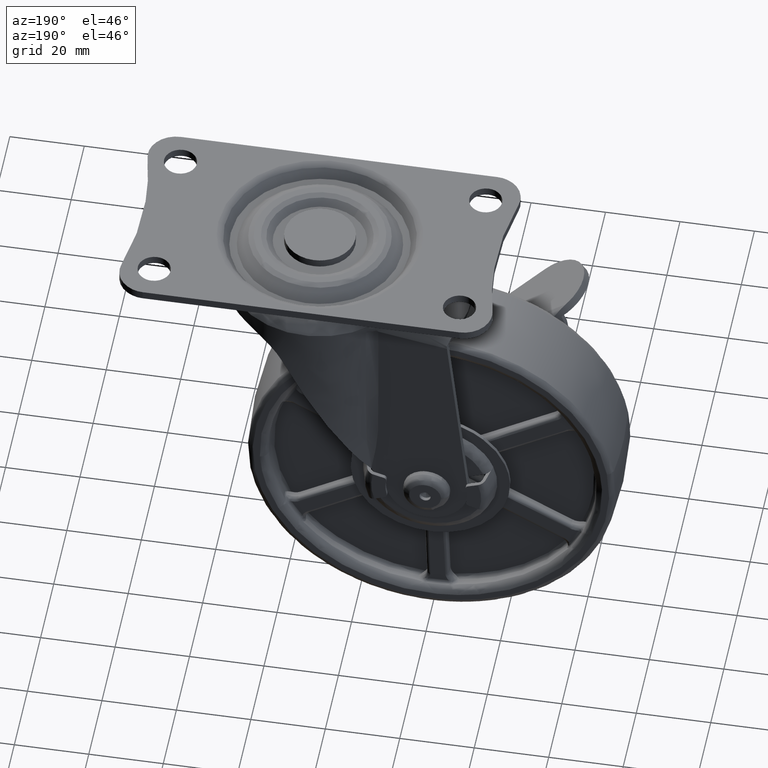
[diagram: clean part render]
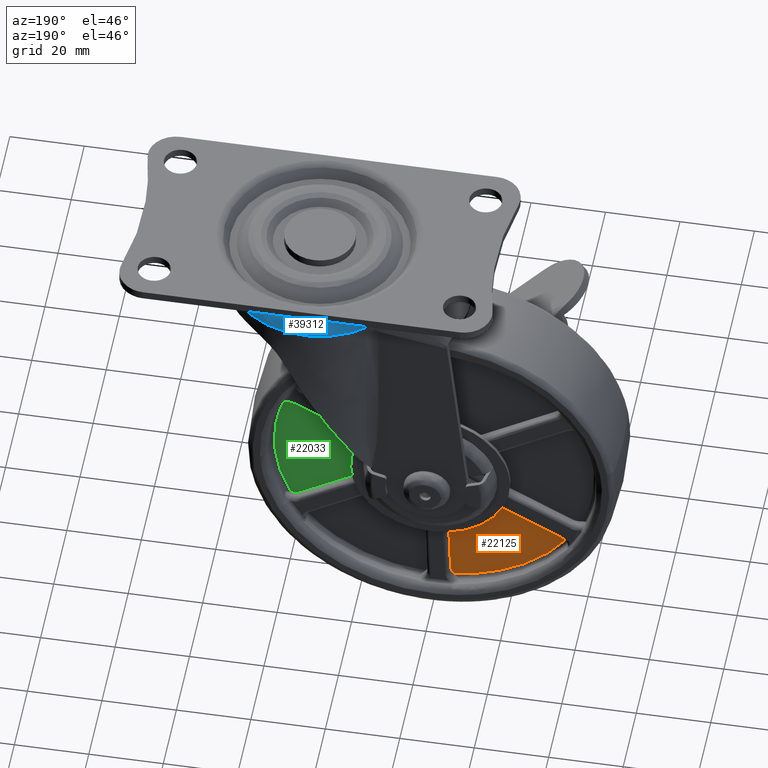
[diagram: same view with three faces highlighted in distinct colors, each labeled with its STEP entity id]
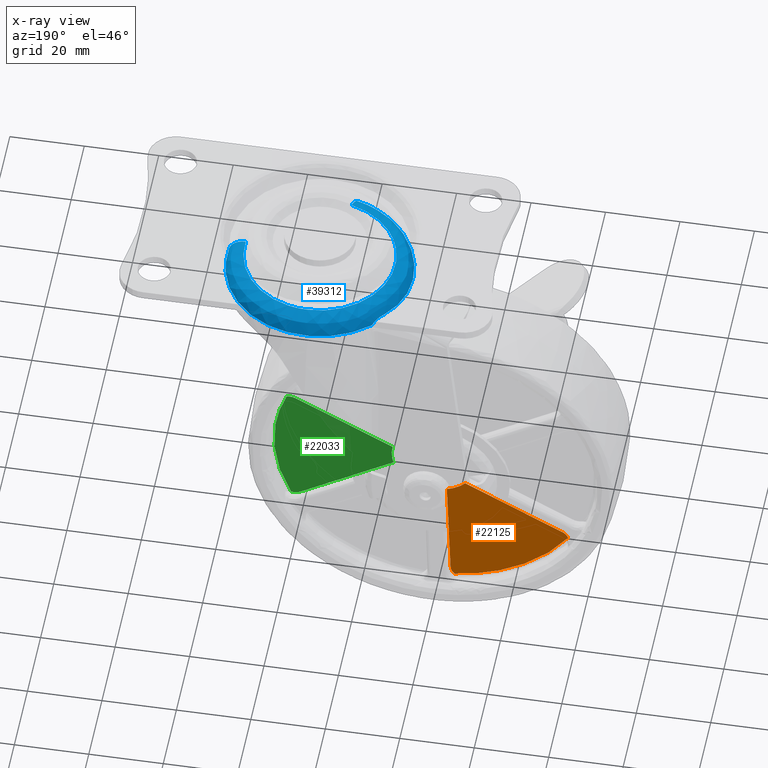
[diagram: x-ray of the same camera — body ghosted, the three highlighted faces saturated]
A machine part, auxiliary view with three faces highlighted in distinct colors.
The next image is the same camera in x-ray (body ghosted, the three faces saturated) — at least one of them is partly hidden behind the body in this view.
Their STEP definitions:

[orange] entity #22125 — the highlighted face is a freeform B-spline surface patch.
#13135=CARTESIAN_POINT('',(-3.898520270039925,7.500000000000000,-42.822909118496348));
#13136=VERTEX_POINT('',#13135);
#13145=CARTESIAN_POINT('',(-3.0,7.500000000000000,-40.481477245772552));
#13146=VERTEX_POINT('',#13145);
#13147=CARTESIAN_POINT('',(-3.0,7.500000000000000,-40.481477245772552));
#13148=CARTESIAN_POINT('',(-2.999971385917076,7.500000000000003,-40.748654271909373));
#13149=CARTESIAN_POINT('',(-3.067539262817946,7.499999999999996,-41.336469728366417));
#13150=CARTESIAN_POINT('',(-3.376774945151983,7.500000000000016,-42.142216525419187));
#13151=CARTESIAN_POINT('',(-3.719754823404831,7.499999999999981,-42.624344417789530));
#13152=CARTESIAN_POINT('',(-3.898520270039925,7.500000000000000,-42.822909118496348));
#13153=B_SPLINE_CURVE_WITH_KNOTS('',3,(#13147,#13148,#13149,#13150,#13151,#13152),.UNSPECIFIED.,.F.,.U.,(4,1,1,4),(0.000000108783510,0.801561501164564,1.763421918056608,2.564983310437035),.UNSPECIFIED.);
#13154=EDGE_CURVE('',#13146,#13136,#13153,.T.);
#13199=CARTESIAN_POINT('',(-3.0,7.500000000000000,-11.013278645977820));
#13200=VERTEX_POINT('',#13199);
#13201=CARTESIAN_POINT('',(-3.0,7.500000000000000,-40.481477245772552));
#13202=CARTESIAN_POINT('',(-3.0,7.500000000000000,-11.013278645977820));
#13203=QUASI_UNIFORM_CURVE('',1,(#13201,#13202),.UNSPECIFIED.,.F.,.U.);
#13204=EDGE_CURVE('',#13146,#13200,#13203,.T.);
#13923=CARTESIAN_POINT('',(-35.136469616515747,7.499999999999830,-24.787680119000800));
#13924=VERTEX_POINT('',#13923);
#13935=CARTESIAN_POINT('',(-33.557987677560597,7.500000000000000,-22.838814834239749));
#13936=VERTEX_POINT('',#13935);
#13942=CARTESIAN_POINT('',(-35.136469616515747,7.499999999999830,-24.787680119000800));
#13943=CARTESIAN_POINT('',(-34.980236533223042,7.499999999999890,-24.304509629944899));
#13944=CARTESIAN_POINT('',(-34.535034048559183,7.499999999999988,-23.551045311698321));
#13945=CARTESIAN_POINT('',(-33.858868040329192,7.499999999999990,-23.012367589514302));
#13946=CARTESIAN_POINT('',(-33.557987677560597,7.500000000000000,-22.838814834239749));
#13947=B_SPLINE_CURVE_WITH_KNOTS('',3,(#13942,#13943,#13944,#13945,#13946),.UNSPECIFIED.,.F.,.U.,(4,1,4),(0.000000108786437,1.522957308057716,2.564991690350785),.UNSPECIFIED.);
#13948=EDGE_CURVE('',#13924,#13936,#13947,.T.);
#13988=CARTESIAN_POINT('',(-8.037782745791821,7.500000000000000,-8.104717647108611));
#13989=VERTEX_POINT('',#13988);
#13999=CARTESIAN_POINT('',(-33.557987677560597,7.500000000000000,-22.838814834239749));
#14000=CARTESIAN_POINT('',(-8.037782745791821,7.500000000000000,-8.104717647108611));
#14001=QUASI_UNIFORM_CURVE('',1,(#13999,#14000),.UNSPECIFIED.,.F.,.U.);
#14002=EDGE_CURVE('',#13936,#13989,#14001,.T.);
#22088=CARTESIAN_POINT('',(-35.136469616515747,7.499999999999830,-24.787680119000800));
#22089=CARTESIAN_POINT('',(-33.237168780563138,7.499999999999838,-27.481125963252289));
#22090=CARTESIAN_POINT('',(-29.985352966148319,7.499999999999941,-31.117897769582459));
#22091=CARTESIAN_POINT('',(-24.669036646620992,7.499999999999872,-35.350103707996119));
#22092=CARTESIAN_POINT('',(-20.446636437147749,7.500000000000052,-37.942661946951141));
#22093=CARTESIAN_POINT('',(-15.335262112789920,7.499999999999931,-40.301217506823242));
#22094=CARTESIAN_POINT('',(-9.954461075080847,7.499999999999942,-41.988121278476598));
#22095=CARTESIAN_POINT('',(-5.829168123925778,7.500000000000033,-42.647220613381762));
#22096=CARTESIAN_POINT('',(-3.898520270039925,7.500000000000000,-42.822909118496348));
#22097=B_SPLINE_CURVE_WITH_KNOTS('',3,(#22088,#22089,#22090,#22091,#22092,#22093,#22094,#22095,#22096),.UNSPECIFIED.,.F.,.U.,(4,1,1,1,1,1,4),(0.000000050087884,9.887042586671520,14.539798704742839,20.355662643080208,24.717592882815801,31.405916633635769,37.221800883283777),.UNSPECIFIED.);
#22098=EDGE_CURVE('',#13924,#13136,#22097,.T.);
#22105=CARTESIAN_POINT('',(-36.741687418270729,7.500000000000000,-6.370543398584304));
#22106=CARTESIAN_POINT('',(-36.741687418270729,7.500000000000000,-44.557083677425481));
#22107=CARTESIAN_POINT('',(-1.394782485567446,7.500000000000000,-6.370543398584304));
#22108=CARTESIAN_POINT('',(-1.394782485567446,7.500000000000000,-44.557083677425481));
#22109=B_SPLINE_SURFACE_WITH_KNOTS('',1,1,((#22105,#22107),(#22106,#22108)),.UNSPECIFIED.,.F.,.F.,.U.,(2,2),(2,2),(0.0,38.186540278841179),(0.0,35.346904932703282),.UNSPECIFIED.);
#22110=ORIENTED_EDGE('',*,*,#13204,.F.);
#22111=ORIENTED_EDGE('',*,*,#13154,.T.);
#22112=ORIENTED_EDGE('',*,*,#22098,.F.);
#22113=ORIENTED_EDGE('',*,*,#13948,.T.);
#22114=ORIENTED_EDGE('',*,*,#14002,.T.);
#22115=CARTESIAN_POINT('',(-8.037782745791821,7.500000000000000,-8.104717647108611));
#22116=CARTESIAN_POINT('',(-7.211564476619667,7.500000000000018,-8.924943359386852));
#22117=CARTESIAN_POINT('',(-5.606138242256549,7.499999999999965,-10.089929203833110));
#22118=CARTESIAN_POINT('',(-3.768536308369087,7.500000000000014,-10.804003067816391));
#22119=CARTESIAN_POINT('',(-3.0,7.500000000000000,-11.013278645977820));
#22120=B_SPLINE_CURVE_WITH_KNOTS('',3,(#22115,#22116,#22117,#22118,#22119),.UNSPECIFIED.,.F.,.U.,(4,1,4),(0.000000024613586,3.492451853238330,5.882055389910719),.UNSPECIFIED.);
#22121=EDGE_CURVE('',#13989,#13200,#22120,.T.);
#22122=ORIENTED_EDGE('',*,*,#22121,.T.);
#22123=EDGE_LOOP('',(#22110,#22111,#22112,#22113,#22114,#22122));
#22124=FACE_OUTER_BOUND('',#22123,.T.);
#22125=ADVANCED_FACE('',(#22124),#22109,.F.);

[blue] entity #39312 — the highlighted face is a freeform B-spline surface patch.
#38512=CARTESIAN_POINT('',(32.0,20.265256892799002,64.092954919999471));
#38513=VERTEX_POINT('',#38512);
#38514=CARTESIAN_POINT('',(15.507606313306770,-11.776314678947850,64.092954920136165));
#38515=VERTEX_POINT('',#38514);
#38516=CARTESIAN_POINT('',(32.0,20.265256892799002,64.092954919999471));
#38517=CARTESIAN_POINT('',(30.612529351628101,20.265470572138469,64.092954920033264));
#38518=CARTESIAN_POINT('',(28.011132811536299,19.997027209760009,64.092954920094286));
#38519=CARTESIAN_POINT('',(24.568089020202759,18.949838059296692,64.092954920169674));
#38520=CARTESIAN_POINT('',(21.292365526999529,17.335744419853160,64.092954920235215));
#38521=CARTESIAN_POINT('',(18.395783787304332,15.189952976310790,64.092954920289955));
#38522=CARTESIAN_POINT('',(15.537524886370420,12.063948591974301,64.092954920332176));
#38523=CARTESIAN_POINT('',(13.517941564025159,8.658418233203843,64.092954920353080));
#38524=CARTESIAN_POINT('',(12.334216701855199,5.199885466592114,64.092954920354927));
#38525=CARTESIAN_POINT('',(11.763436020953320,2.065228650919995,64.092954920340745));
#38526=CARTESIAN_POINT('',(11.663005402628171,-1.240611899658049,64.092954920318832));
#38527=CARTESIAN_POINT('',(12.164374927180070,-4.571018236760887,64.092954920276355));
#38528=CARTESIAN_POINT('',(13.338367686345640,-8.210884641600499,64.092954920218830));
#38529=CARTESIAN_POINT('',(14.566594341590470,-10.459170224614491,64.092954920170158));
#38530=CARTESIAN_POINT('',(15.507606313306770,-11.776314678947850,64.092954920136165));
#38531=B_SPLINE_CURVE_WITH_KNOTS('',3,(#38516,#38517,#38518,#38519,#38520,#38521,#38522,#38523,#38524,#38525,#38526,#38527,#38528,#38529,#38530),.UNSPECIFIED.,.F.,.U.,(4,1,1,1,1,1,1,1,1,1,1,1,4),(0.000000393487625,4.162371753187813,7.804474997766619,10.752885327754360,15.088736514432840,18.557404484585199,23.413433087349830,26.882133198913898,29.483683274028628,32.952390171425840,36.767979427407603,39.542875226071473,44.399014055896458),.UNSPECIFIED.);
#38532=EDGE_CURVE('',#38513,#38515,#38531,.T.);
#38634=CARTESIAN_POINT('',(26.969912258118679,-19.631068606062541,64.092954919909261));
#38635=VERTEX_POINT('',#38634);
#38636=CARTESIAN_POINT('',(15.507606313306770,-11.776314678947850,64.092954920136165));
#38637=CARTESIAN_POINT('',(16.237265221860071,-12.798383828556620,64.092954920179181));
#38638=CARTESIAN_POINT('',(17.935918476693651,-14.762356491971961,64.092954920233524));
#38639=CARTESIAN_POINT('',(20.619915137922451,-16.873010714679431,64.092954920210431));
#38640=CARTESIAN_POINT('',(23.659247199380399,-18.564296090573659,64.092954920106934));
#38641=CARTESIAN_POINT('',(25.681804065137289,-19.301183509684630,64.092954919995705));
#38642=CARTESIAN_POINT('',(26.969912258118679,-19.631068606062541,64.092954919909261));
#38643=B_SPLINE_CURVE_WITH_KNOTS('',3,(#38636,#38637,#38638,#38639,#38640,#38641,#38642),.UNSPECIFIED.,.F.,.U.,(4,1,1,1,4),(0.000000046333906,3.767400909723886,7.756381177978906,10.194132882863840,14.183149658670381),.UNSPECIFIED.);
#38644=EDGE_CURVE('',#38515,#38635,#38643,.T.);
#38655=CARTESIAN_POINT('',(52.207681281061582,-1.526517065732718,64.092954920168822));
#38656=VERTEX_POINT('',#38655);
#38671=CARTESIAN_POINT('',(52.207681281061582,-1.526517065732718,64.092954920168822));
#38672=CARTESIAN_POINT('',(52.332400076691400,0.119431135661902,64.092954920199361));
#38673=CARTESIAN_POINT('',(52.192631488763602,3.092033258383738,64.092954920244907));
#38674=CARTESIAN_POINT('',(51.139372132938178,6.966373542060281,64.092954920281144));
#38675=CARTESIAN_POINT('',(49.583698826548819,10.279031530841170,64.092954920295199));
#38676=CARTESIAN_POINT('',(47.726674114800190,12.921006512905670,64.092954920290893));
#38677=CARTESIAN_POINT('',(45.050863320100632,15.662038298762500,64.092954920264745));
#38678=CARTESIAN_POINT('',(42.111428011079113,17.720351770168399,64.092954920224074));
#38679=CARTESIAN_POINT('',(38.437651120198112,19.323596820573510,64.092954920152422));
#38680=CARTESIAN_POINT('',(35.214437434666927,20.105320737522050,64.092954920082008));
#38681=CARTESIAN_POINT('',(32.955631699125377,20.265271944134710,64.092954920023558));
#38682=CARTESIAN_POINT('',(32.0,20.265256892799002,64.092954919999471));
#38683=B_SPLINE_CURVE_WITH_KNOTS('',3,(#38671,#38672,#38673,#38674,#38675,#38676,#38677,#38678,#38679,#38680,#38681,#38682),.UNSPECIFIED.,.F.,.U.,(4,1,1,1,1,1,1,1,1,4),(0.000000131382649,4.951952747308781,8.861461540921546,11.989077203525531,15.898566523233089,18.504733439707820,23.456787606859599,26.584390521659021,30.493857725314889,33.360785362392512),.UNSPECIFIED.);
#38684=EDGE_CURVE('',#38656,#38513,#38683,.T.);
#39118=CARTESIAN_POINT('',(56.928972506515343,-1.883170138198318,59.099996000010627));
#39119=VERTEX_POINT('',#39118);
#39120=CARTESIAN_POINT('',(25.794690383975361,-24.217640937308119,59.100005422598713));
#39121=VERTEX_POINT('',#39120);
#39138=CARTESIAN_POINT('',(56.928972506515343,-1.883170138198318,59.099996000010627));
#39139=CARTESIAN_POINT('',(56.929223703231933,-1.883189113956533,59.613835171439803));
#39140=CARTESIAN_POINT('',(56.800218767880551,-1.873443897159008,60.443658611437847));
#39141=CARTESIAN_POINT('',(56.287684456076789,-1.834726324291794,61.648816851325847));
#39142=CARTESIAN_POINT('',(55.479263634316723,-1.773657062482342,62.737619478394187));
#39143=CARTESIAN_POINT('',(54.083052756701747,-1.668185301573673,63.741915698915172));
#39144=CARTESIAN_POINT('',(52.876874892976012,-1.577068905550796,64.058042295251326));
#39145=CARTESIAN_POINT('',(52.207681281061582,-1.526517065732718,64.092954920168822));
#39146=B_SPLINE_CURVE_WITH_KNOTS('',3,(#39138,#39139,#39140,#39141,#39142,#39143,#39144,#39145),.UNSPECIFIED.,.F.,.U.,(4,1,1,1,1,4),(0.000000365569145,1.541451323881802,2.490070963599806,3.912910901014764,5.573005724567029,7.588777932124581),.UNSPECIFIED.);
#39147=EDGE_CURVE('',#39119,#38656,#39146,.T.);
#39151=CARTESIAN_POINT('',(25.794690383975361,-24.217640937308119,59.100005422598713));
#39152=CARTESIAN_POINT('',(25.794666657741860,-24.217733534347939,59.495244237622103));
#39153=CARTESIAN_POINT('',(25.816913506357910,-24.130910116066591,60.246159655583511));
#39154=CARTESIAN_POINT('',(25.913358464441941,-23.754511594219402,61.331445672468497));
#39155=CARTESIAN_POINT('',(26.089022015244211,-23.068944383923721,62.438092543046260));
#39156=CARTESIAN_POINT('',(26.328895914451540,-22.132781593483902,63.280701781614162));
#39157=CARTESIAN_POINT('',(26.638573340971568,-20.924194562128410,63.892713823702671));
#39158=CARTESIAN_POINT('',(26.842547757988001,-20.128137717104170,64.065944245582344));
#39159=CARTESIAN_POINT('',(26.969912258118679,-19.631068606062541,64.092954919909261));
#39160=B_SPLINE_CURVE_WITH_KNOTS('',3,(#39151,#39152,#39153,#39154,#39155,#39156,#39157,#39158,#39159),.UNSPECIFIED.,.F.,.U.,(4,1,1,1,1,1,4),(0.000000365565063,1.185723590945794,2.252935391162573,3.438741954023955,5.098700998843111,6.047319459839156,7.588768502918593),.UNSPECIFIED.);
#39161=EDGE_CURVE('',#39121,#38635,#39160,.T.);
#39166=CARTESIAN_POINT('',(56.917476125421899,-1.882301685173752,58.760645968007523));
#39167=CARTESIAN_POINT('',(58.799777810595643,23.035174440248142,58.760645968007502));
#39168=CARTESIAN_POINT('',(33.882301685173751,24.917476125421889,58.760645968007523));
#39169=CARTESIAN_POINT('',(8.964825559751862,26.799777810595643,58.760645968007502));
#39170=CARTESIAN_POINT('',(7.082523874578108,1.882301685173756,58.760645968007523));
#39171=CARTESIAN_POINT('',(5.504533409927876,-19.006772600193059,58.760645968007523));
#39172=CARTESIAN_POINT('',(25.797551884391957,-24.206472553186440,58.760645968007516));
#39173=CARTESIAN_POINT('',(57.284995481980545,-1.910064621544283,64.178600961011199));
#39174=CARTESIAN_POINT('',(59.195060103524824,23.374930860436262,64.178600961011171));
#39175=CARTESIAN_POINT('',(33.910064621544279,25.284995481980541,64.178600961011199));
#39176=CARTESIAN_POINT('',(8.625069139563752,27.195060103524813,64.178600961011171));
#39177=CARTESIAN_POINT('',(6.715004518019465,1.910064621544286,64.178600961011199));
#39178=CARTESIAN_POINT('',(5.113739543651439,-19.287112262248662,64.178600961011185));
#39179=CARTESIAN_POINT('',(25.706069114264569,-24.563504989879547,64.178600961011185));
#39180=CARTESIAN_POINT('',(51.870522271605317,-1.501047592816424,64.099465073866256));
#39181=CARTESIAN_POINT('',(53.371569864421730,18.369474678788883,64.099465073866241));
#39182=CARTESIAN_POINT('',(33.501047592816434,19.870522271605314,64.099465073866256));
#39183=CARTESIAN_POINT('',(13.630525321211119,21.371569864421744,64.099465073866241));
#39184=CARTESIAN_POINT('',(12.129477728394697,1.501047592816427,64.099465073866256));
#39185=CARTESIAN_POINT('',(10.871104106829423,-15.157012546634029,64.099465073866227));
#39186=CARTESIAN_POINT('',(27.053837603804297,-19.303530163488801,64.099465073866227));
#39194=(BOUNDED_SURFACE()B_SPLINE_SURFACE(2,2,((#39166,#39173,#39180),(#39167,#39174,#39181),(#39168,#39175,#39182),(#39169,#39176,#39183),(#39170,#39177,#39184),(#39171,#39178,#39185),(#39172,#39179,#39186)),.UNSPECIFIED.,.F.,.F.,.U.)B_SPLINE_SURFACE_WITH_KNOTS((3,2,2,3),(3,3),(0.0,41.402254138473012,82.804508276946024,119.238491721380900),(0.0,8.771739623110413),.UNSPECIFIED.)GEOMETRIC_REPRESENTATION_ITEM()RATIONAL_B_SPLINE_SURFACE(((0.911520095950082,0.618700767838952,0.915319004548321),(0.644542041034115,0.437487508464247,0.647228275065038),(0.911520095950082,0.618700767838952,0.915319004548321),(0.644542041034115,0.437487508464247,0.647228275065038),(0.911520095950082,0.618700767838952,0.915319004548321),(0.676579408897082,0.459233100453304,0.679399163881388),(0.855134328816793,0.580428526145594,0.858698240538350)))REPRESENTATION_ITEM('')SURFACE());
#39195=CARTESIAN_POINT('',(14.842196918029259,-18.182678389068752,59.099995999999798));
#39196=VERTEX_POINT('',#39195);
#39197=CARTESIAN_POINT('',(25.794690383975361,-24.217640937308119,59.100005422598713));
#39198=CARTESIAN_POINT('',(24.391722286461711,-23.858286938052391,59.100004366040707));
#39199=CARTESIAN_POINT('',(21.648563111550072,-22.894751167129922,59.100002205325119));
#39200=CARTESIAN_POINT('',(17.960844205811039,-20.824661050609539,59.099999018864942));
#39201=CARTESIAN_POINT('',(15.799718579443089,-19.086323188462391,59.099996960512627));
#39202=CARTESIAN_POINT('',(14.842196918029259,-18.182678389068752,59.099995999999798));
#39203=B_SPLINE_CURVE_WITH_KNOTS('',3,(#39197,#39198,#39199,#39200,#39201,#39202),.UNSPECIFIED.,.F.,.U.,(4,1,1,4),(0.000000022102729,4.344772100435757,8.689534366732792,12.639327818584491),.UNSPECIFIED.);
#39204=EDGE_CURVE('',#39121,#39196,#39203,.T.);
#39205=ORIENTED_EDGE('',*,*,#39204,.F.);
#39206=ORIENTED_EDGE('',*,*,#39161,.T.);
#39207=ORIENTED_EDGE('',*,*,#38644,.F.);
#39208=ORIENTED_EDGE('',*,*,#38532,.F.);
#39209=ORIENTED_EDGE('',*,*,#38684,.F.);
#39210=ORIENTED_EDGE('',*,*,#39147,.F.);
#39211=CARTESIAN_POINT('',(14.842191354631421,18.182673139252898,59.099995999999798));
#39212=VERTEX_POINT('',#39211);
#39213=CARTESIAN_POINT('',(14.842191354631421,18.182673139252898,59.099995999999798));
#39214=CARTESIAN_POINT('',(16.150310016254739,19.417372560018890,59.099995999999400));
#39215=CARTESIAN_POINT('',(19.097229679838090,21.650300938182362,59.099995999998733));
#39216=CARTESIAN_POINT('',(23.680203158983009,23.740593857391779,59.099995999997986));
#39217=CARTESIAN_POINT('',(28.639371842717470,24.930803746812540,59.099995999998022));
#39218=CARTESIAN_POINT('',(33.436015432652390,25.137846937678390,59.099995999997851));
#39219=CARTESIAN_POINT('',(37.776514161109731,24.422219113777071,59.099995999998740));
#39220=CARTESIAN_POINT('',(41.651329417422929,23.166012035767150,59.099995999999422));
#39221=CARTESIAN_POINT('',(45.164394556862717,21.409538752809048,59.099996000000353));
#39222=CARTESIAN_POINT('',(48.370263434136717,19.012511047727170,59.099996000001568));
#39223=CARTESIAN_POINT('',(51.300872097274123,16.070069937771930,59.099996000002889));
#39224=CARTESIAN_POINT('',(53.582239381564243,12.868407738730641,59.099996000004573));
#39225=CARTESIAN_POINT('',(55.507829240455692,8.835439743112943,59.099996000005810));
#39226=CARTESIAN_POINT('',(56.881533022526668,4.080974560873851,59.099996000009298));
#39227=CARTESIAN_POINT('',(57.094656172364303,0.300492973158980,59.099996000008638));
#39228=CARTESIAN_POINT('',(56.928972506515343,-1.883170138198318,59.099996000010627));
#39229=B_SPLINE_CURVE_WITH_KNOTS('',3,(#39213,#39214,#39215,#39216,#39217,#39218,#39219,#39220,#39221,#39222,#39223,#39224,#39225,#39226,#39227,#39228),.UNSPECIFIED.,.F.,.U.,(4,1,1,1,1,1,1,1,1,1,1,1,1,4),(0.000000378005161,5.396381499841219,11.027562986740900,15.016315229298041,20.647495240099790,25.340044260706801,28.155635972179780,32.848174402067023,37.071490371470112,40.121663997056409,45.283568602349618,48.803056164061779,53.495616741479971,60.065248119842593),.UNSPECIFIED.);
#39230=EDGE_CURVE('',#39212,#39119,#39229,.T.);
#39231=ORIENTED_EDGE('',*,*,#39230,.F.);
#39232=CARTESIAN_POINT('',(12.152795594778100,14.941735386965201,60.343718713569586));
#39233=VERTEX_POINT('',#39232);
#39234=CARTESIAN_POINT('',(14.842191354631421,18.182673139252898,59.099995999999798));
#39235=CARTESIAN_POINT('',(14.805730562449799,18.147294711724971,59.158888362303323));
#39236=CARTESIAN_POINT('',(14.732608084976841,18.076342927214458,59.276997574369737));
#39237=CARTESIAN_POINT('',(14.617144951182929,17.952815303387929,59.440498916070510));
#39238=CARTESIAN_POINT('',(14.496770923199790,17.817526729540639,59.594004567453027));
#39239=CARTESIAN_POINT('',(14.370690964522140,17.669752768257268,59.736481393798968));
#39240=CARTESIAN_POINT('',(14.178014512622809,17.437138147320258,59.928709286276423));
#39241=CARTESIAN_POINT('',(13.912177037590549,17.104517100458960,60.139469999300793));
#39242=CARTESIAN_POINT('',(13.572065572631590,16.675948641788828,60.313495471011073));
#39243=CARTESIAN_POINT('',(13.214761605479801,16.235442054496040,60.405220942400902));
#39244=CARTESIAN_POINT('',(12.870330356913421,15.818070466025739,60.427005817429603));
#39245=CARTESIAN_POINT('',(12.509646270089890,15.384372590084910,60.400762001020937));
#39246=CARTESIAN_POINT('',(12.280342558936651,15.099944507439091,60.364107348490137));
#39247=CARTESIAN_POINT('',(12.152795594778100,14.941735386965201,60.343718713569586));
#39248=B_SPLINE_CURVE_WITH_KNOTS('',3,(#39234,#39235,#39236,#39237,#39238,#39239,#39240,#39241,#39242,#39243,#39244,#39245,#39246,#39247),.UNSPECIFIED.,.F.,.U.,(4,1,1,1,1,1,1,1,1,1,1,4),(0.0,0.050718137105290,0.101715723001890,0.153232380944903,0.205499240527107,0.258736621354350,0.386691106124852,0.514166717524929,0.631825778297729,0.760480271805629,0.866770520051019,1.0),.UNSPECIFIED.);
#39249=EDGE_CURVE('',#39212,#39233,#39248,.T.);
#39250=ORIENTED_EDGE('',*,*,#39249,.T.);
#39251=CARTESIAN_POINT('',(12.152799567385060,-14.941740369255941,60.343719403383801));
#39252=VERTEX_POINT('',#39251);
#39253=CARTESIAN_POINT('',(12.152795594778100,14.941735386965201,60.343718713569586));
#39254=CARTESIAN_POINT('',(12.014125642680231,14.764704799414799,60.319640835014489));
#39255=CARTESIAN_POINT('',(11.736876276665379,14.410759208310710,60.271500798449857));
#39256=CARTESIAN_POINT('',(11.341186169664200,13.864340609138440,60.202803539438527));
#39257=CARTESIAN_POINT('',(10.960757438378980,13.307537607660150,60.136763872413887));
#39258=CARTESIAN_POINT('',(10.597234529903560,12.739781461372850,60.073667788944007));
#39259=CARTESIAN_POINT('',(10.250443344469341,12.161975967181609,60.013484148761940));
#39260=CARTESIAN_POINT('',(9.920671462187196,11.574624928654780,59.956261466422902));
#39261=CARTESIAN_POINT('',(9.608059043783646,10.978332770320529,59.902022148527799));
#39262=CARTESIAN_POINT('',(9.312763045012831,10.373670083123320,59.850791220625830));
#39263=CARTESIAN_POINT('',(9.034914436471521,9.761209241425778,59.802589040129419));
#39264=CARTESIAN_POINT('',(8.774630786945455,9.141514602796280,59.757433627163060));
#39265=CARTESIAN_POINT('',(8.532013992575095,8.515144954026587,59.715340400712812));
#39266=CARTESIAN_POINT('',(8.307151938107349,7.882652766211007,59.676322587801032));
#39267=CARTESIAN_POINT('',(8.100119058872991,7.244584383938259,59.640391430825062));
#39268=CARTESIAN_POINT('',(7.910977146142450,6.601480038996410,59.607556426810447));
#39269=CARTESIAN_POINT('',(7.739776033355460,5.953873979233142,59.577825535740978));
#39270=CARTESIAN_POINT('',(7.586554257299998,5.302294630588912,59.551205374512847));
#39271=CARTESIAN_POINT('',(7.451339666906316,4.647264802637115,59.527701391969110));
#39272=CARTESIAN_POINT('',(7.334149983739302,3.989301951139861,59.507318025749292));
#39273=CARTESIAN_POINT('',(7.234993315490703,3.328918406771449,59.490058841816982));
#39274=CARTESIAN_POINT('',(7.153868605071149,2.666621893249232,59.475926651893211));
#39275=CARTESIAN_POINT('',(7.090766076781854,2.002915108537596,59.464923626535303));
#39276=CARTESIAN_POINT('',(7.045667445904435,1.338298920094442,59.457051337394653));
#39277=CARTESIAN_POINT('',(7.018546759554011,0.673262192903191,59.452310976197182));
#39278=CARTESIAN_POINT('',(7.006298725729285,-0.214088276534927,59.450164933078860));
#39279=CARTESIAN_POINT('',(7.035893624789495,-1.324450730615879,59.455341504240117));
#39280=CARTESIAN_POINT('',(7.143453485932013,-2.654616184506998,59.474106448747207));
#39281=CARTESIAN_POINT('',(7.323253662906135,-3.979201675314860,59.505415683450423));
#39282=CARTESIAN_POINT('',(7.575341754792518,-5.294124497448672,59.549249619681390));
#39283=CARTESIAN_POINT('',(7.899614496355574,-6.595260966873585,59.605575846344330));
#39284=CARTESIAN_POINT('',(8.295815696802515,-7.878384283656103,59.674347447187699));
#39285=CARTESIAN_POINT('',(8.763470661239179,-9.139206782708195,59.755489500476322));
#39286=CARTESIAN_POINT('',(9.302038394811362,-10.373229593957619,59.848922866436943));
#39287=CARTESIAN_POINT('',(9.910236003009777,-11.576276891202751,59.954443323353871));
#39288=CARTESIAN_POINT('',(10.588447574839270,-12.742498736160600,60.072136517652957));
#39289=CARTESIAN_POINT('',(11.329581805771101,-13.871860958711061,60.200783043079937));
#39290=CARTESIAN_POINT('',(11.878265037217220,-14.584946753998910,60.296051619293493));
#39291=CARTESIAN_POINT('',(12.152799567385060,-14.941740369255941,60.343719403383801));
#39292=B_SPLINE_CURVE_WITH_KNOTS('',3,(#39253,#39254,#39255,#39256,#39257,#39258,#39259,#39260,#39261,#39262,#39263,#39264,#39265,#39266,#39267,#39268,#39269,#39270,#39271,#39272,#39273,#39274,#39275,#39276,#39277,#39278,#39279,#39280,#39281,#39282,#39283,#39284,#39285,#39286,#39287,#39288,#39289,#39290,#39291),.UNSPECIFIED.,.F.,.U.,(4,1,1,1,1,1,1,1,1,1,1,1,1,1,1,1,1,1,1,1,1,1,1,1,1,1,1,1,1,1,1,1,1,1,1,1,4),(0.0,0.021026278750844,0.042038829358058,0.063036659601912,0.084018883381226,0.104984716628576,0.125933473084919,0.146864559950529,0.167777473427807,0.188671794170258,0.209547182650731,0.230403374460828,0.251240175552376,0.272057457430750,0.292855152308949,0.313633248230407,0.334391784167706,0.355130845103630,0.375850557100295,0.396551082361488,0.417232614292827,0.437895372563846,0.458539598175747,0.479165548538198,0.499773492558302,0.541042674385915,0.582385402432539,0.623803660702138,0.665299091909832,0.706872838781271,0.748525385239076,0.790256398045336,0.832064569608346,0.873947462836803,0.915901359135314,0.957921110880914,1.0),.UNSPECIFIED.);
#39293=EDGE_CURVE('',#39233,#39252,#39292,.T.);
#39294=ORIENTED_EDGE('',*,*,#39293,.T.);
#39295=CARTESIAN_POINT('',(12.152799567385060,-14.941740369255941,60.343719403383801));
#39296=CARTESIAN_POINT('',(12.280246646183450,-15.099815292410300,60.364122091878663));
#39297=CARTESIAN_POINT('',(12.508965230612921,-15.383499100611219,60.400737085922373));
#39298=CARTESIAN_POINT('',(12.868989867269960,-15.816252788863480,60.427429202850227));
#39299=CARTESIAN_POINT('',(13.212885579315181,-16.232929394081410,60.406026892855706));
#39300=CARTESIAN_POINT('',(13.570261520433160,-16.673537775977429,60.314654110895013));
#39301=CARTESIAN_POINT('',(13.910728224487620,-17.102550069762898,60.140723197765070));
#39302=CARTESIAN_POINT('',(14.207025117780260,-17.473516247589899,59.906324768940280));
#39303=CARTESIAN_POINT('',(14.454490595917200,-17.769764527102510,59.648613456481989));
#39304=CARTESIAN_POINT('',(14.656960264911460,-17.999661887968951,59.393513980857847));
#39305=CARTESIAN_POINT('',(14.780735705742460,-18.121953819515539,59.197384776075332));
#39306=CARTESIAN_POINT('',(14.842196918029259,-18.182678389068752,59.099995999999798));
#39307=B_SPLINE_CURVE_WITH_KNOTS('',3,(#39295,#39296,#39297,#39298,#39299,#39300,#39301,#39302,#39303,#39304,#39305,#39306),.UNSPECIFIED.,.F.,.U.,(4,1,1,1,1,1,1,1,1,4),(0.0,0.133128478023043,0.238914515167512,0.367459318378934,0.485164761264428,0.612759552667548,0.740907355698196,0.829164402903501,0.915170870499345,1.0),.UNSPECIFIED.);
#39308=EDGE_CURVE('',#39252,#39196,#39307,.T.);
#39309=ORIENTED_EDGE('',*,*,#39308,.T.);
#39310=EDGE_LOOP('',(#39205,#39206,#39207,#39208,#39209,#39210,#39231,#39250,#39294,#39309));
#39311=FACE_OUTER_BOUND('',#39310,.T.);
#39312=ADVANCED_FACE('',(#39311),#39194,.T.);

[green] entity #22033 — the highlighted face is a freeform B-spline surface patch.
#13291=CARTESIAN_POINT('',(39.034998561031450,7.499999999999830,-18.035234576039500));
#13292=VERTEX_POINT('',#13291);
#13303=CARTESIAN_POINT('',(36.557987677560803,7.500000000000000,-17.642662411532751));
#13304=VERTEX_POINT('',#13303);
#13310=CARTESIAN_POINT('',(39.034998561031450,7.499999999999830,-18.035234576039500));
#13311=CARTESIAN_POINT('',(38.642981666598352,7.499999999999888,-18.118747694851550));
#13312=CARTESIAN_POINT('',(37.775943248881958,7.499999999999959,-18.150782191763511));
#13313=CARTESIAN_POINT('',(36.951165092088857,7.500000000000004,-17.870177655731521));
#13314=CARTESIAN_POINT('',(36.557987677560803,7.500000000000000,-17.642662411532751));
#13315=B_SPLINE_CURVE_WITH_KNOTS('',3,(#13310,#13311,#13312,#13313,#13314),.UNSPECIFIED.,.F.,.U.,(4,1,4),(0.000000108787557,1.202375364100657,2.564994827819733),.UNSPECIFIED.);
#13316=EDGE_CURVE('',#13292,#13304,#13315,.T.);
#13357=CARTESIAN_POINT('',(11.037789283345200,7.500000000000000,-2.908568998859741));
#13358=VERTEX_POINT('',#13357);
#13369=CARTESIAN_POINT('',(36.557987677560803,7.500000000000000,-17.642662411532751));
#13370=CARTESIAN_POINT('',(11.037789283345200,7.500000000000000,-2.908568998859741));
#13371=QUASI_UNIFORM_CURVE('',1,(#13369,#13370),.UNSPECIFIED.,.F.,.U.);
#13372=EDGE_CURVE('',#13304,#13358,#13371,.T.);
#13407=CARTESIAN_POINT('',(39.035014954276299,7.500000000000000,18.035231094909999));
#13408=VERTEX_POINT('',#13407);
#13417=CARTESIAN_POINT('',(36.557987677560753,7.500000000000000,17.642662411532950));
#13418=VERTEX_POINT('',#13417);
#13419=CARTESIAN_POINT('',(36.557987677560753,7.500000000000000,17.642662411532950));
#13420=CARTESIAN_POINT('',(36.997380507054316,7.500000000000000,17.897207155673041));
#13421=CARTESIAN_POINT('',(37.832283403566791,7.500000000000001,18.159571070500469));
#13422=CARTESIAN_POINT('',(38.695280500387092,7.499999999999999,18.107483212524649));
#13423=CARTESIAN_POINT('',(39.035014954276299,7.500000000000000,18.035231094909999));
#13424=B_SPLINE_CURVE_WITH_KNOTS('',3,(#13419,#13420,#13421,#13422,#13423),.UNSPECIFIED.,.F.,.U.,(4,1,4),(0.000000108790072,1.522969121948276,2.565011587699055),.UNSPECIFIED.);
#13425=EDGE_CURVE('',#13418,#13408,#13424,.T.);
#13487=CARTESIAN_POINT('',(11.037796602198339,7.500000000000000,2.908573224401790));
#13488=VERTEX_POINT('',#13487);
#13489=CARTESIAN_POINT('',(11.037796602198339,7.500000000000000,2.908573224401790));
#13490=CARTESIAN_POINT('',(36.557987677560753,7.500000000000000,17.642662411532950));
#13491=QUASI_UNIFORM_CURVE('',1,(#13489,#13490),.UNSPECIFIED.,.F.,.U.);
#13492=EDGE_CURVE('',#13488,#13418,#13491,.T.);
#21998=CARTESIAN_POINT('',(39.034998561031450,7.499999999999830,-18.035234576039500));
#21999=CARTESIAN_POINT('',(39.726151312272911,7.499999999999848,-16.539362309738440));
#22000=CARTESIAN_POINT('',(41.185498783979227,7.499999999999859,-12.835719145115871));
#22001=CARTESIAN_POINT('',(42.530968396341372,7.499999999999928,-7.257896146052852));
#22002=CARTESIAN_POINT('',(43.173714906553890,7.499999999999945,-0.490500649979458));
#22003=CARTESIAN_POINT('',(42.759238461415421,7.499999999999942,6.312529099565825));
#22004=CARTESIAN_POINT('',(41.185499382128512,7.500000000000069,12.835715957261421));
#22005=CARTESIAN_POINT('',(39.726159266749718,7.499999999999958,16.539355907577558));
#22006=CARTESIAN_POINT('',(39.035014954276299,7.500000000000000,18.035231094909999));
#22007=B_SPLINE_CURVE_WITH_KNOTS('',3,(#21998,#21999,#22000,#22001,#22002,#22003,#22004,#22005,#22006),.UNSPECIFIED.,.F.,.U.,(4,1,1,1,1,1,4),(0.000000050093298,4.943492024411835,11.922622494323100,17.156966988648129,25.299171251258379,32.278301721169612,37.221793695488373),.UNSPECIFIED.);
#22008=EDGE_CURVE('',#13292,#13408,#22007,.T.);
#22013=CARTESIAN_POINT('',(9.441277491095807,7.500000000000000,19.920715385502010));
#22014=CARTESIAN_POINT('',(9.441277491095807,7.500000000000000,-19.920685466232761));
#22015=CARTESIAN_POINT('',(44.596501216139352,7.500000000000000,19.920715385502021));
#22016=CARTESIAN_POINT('',(44.596501216139352,7.500000000000000,-19.920685466232761));
#22017=B_SPLINE_SURFACE_WITH_KNOTS('',1,1,((#22013,#22015),(#22014,#22016)),.UNSPECIFIED.,.F.,.F.,.U.,(2,2),(2,2),(0.0,39.841400851734782),(0.0,35.155223725043541),.UNSPECIFIED.);
#22018=ORIENTED_EDGE('',*,*,#13316,.T.);
#22019=ORIENTED_EDGE('',*,*,#13372,.T.);
#22020=CARTESIAN_POINT('',(11.037789283345200,7.500000000000000,-2.908568998859741));
#22021=CARTESIAN_POINT('',(11.240843836734401,7.500000000000001,-2.138360973971077));
#22022=CARTESIAN_POINT('',(11.541181472676900,7.500000000000001,-0.189901637006996));
#22023=CARTESIAN_POINT('',(11.335040624938321,7.500000000000006,1.782929471489865));
#22024=CARTESIAN_POINT('',(11.037796602198339,7.500000000000000,2.908573224401790));
#22025=B_SPLINE_CURVE_WITH_KNOTS('',3,(#22020,#22021,#22022,#22023,#22024),.UNSPECIFIED.,.F.,.U.,(4,1,4),(0.000000024613912,2.389609395882270,5.882069751659550),.UNSPECIFIED.);
#22026=EDGE_CURVE('',#13358,#13488,#22025,.T.);
#22027=ORIENTED_EDGE('',*,*,#22026,.T.);
#22028=ORIENTED_EDGE('',*,*,#13492,.T.);
#22029=ORIENTED_EDGE('',*,*,#13425,.T.);
#22030=ORIENTED_EDGE('',*,*,#22008,.F.);
#22031=EDGE_LOOP('',(#22018,#22019,#22027,#22028,#22029,#22030));
#22032=FACE_OUTER_BOUND('',#22031,.T.);
#22033=ADVANCED_FACE('',(#22032),#22017,.F.);